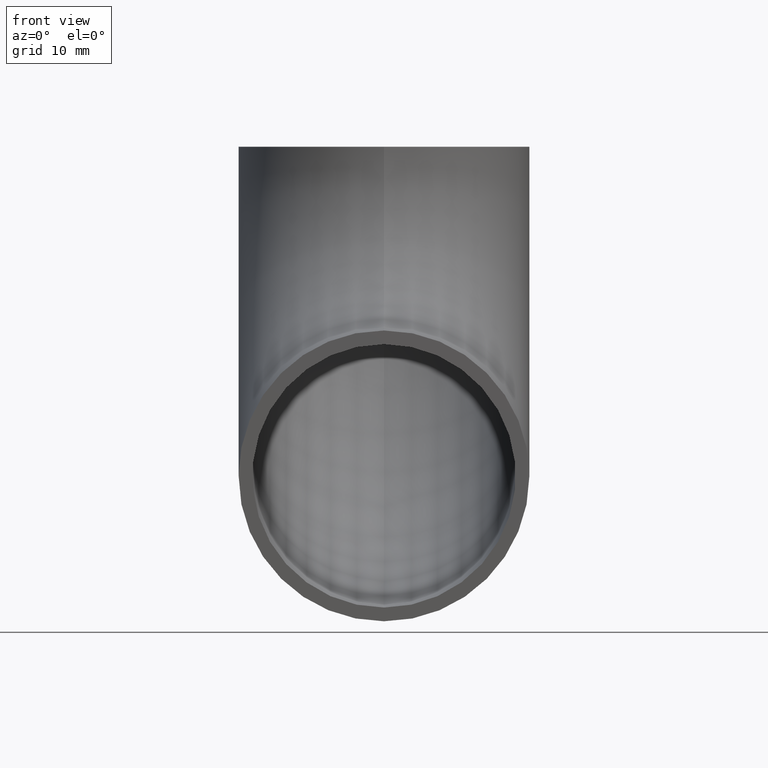
[diagram: clean part render]
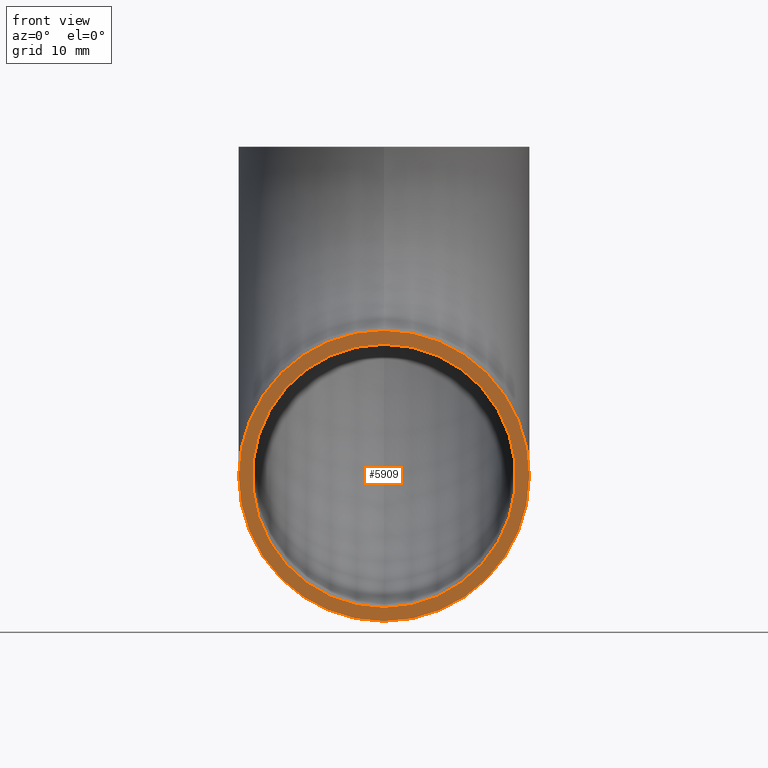
[diagram: same view with one face highlighted and labeled with its STEP entity id]
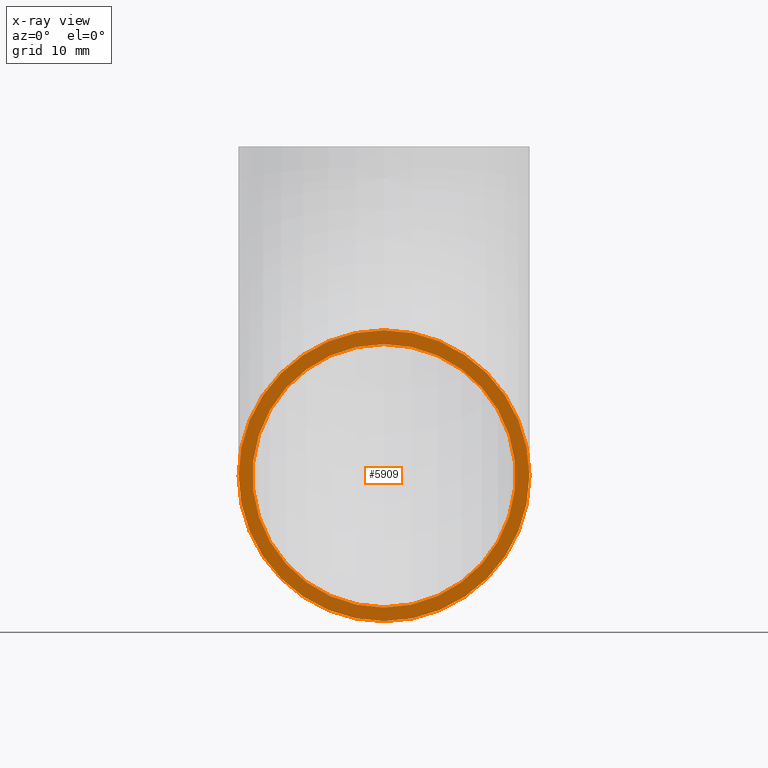
[diagram: x-ray of the same camera — body ghosted, the highlighted face saturated]
A machine part, front view. The second image highlights one B-rep face of the part: STEP entity #5909.
The next image is the same camera in x-ray: the body ghosted, the highlighted face saturated — about 0% of this face is hidden behind the body in this view.
In plain terms, the highlighted planar face has unit normal (0, 1, 0).
Its self-contained STEP definition (entity closure, byte-faithful):
#307 = CIRCLE ( 'NONE', #1771, 19.20000000000000300 ) ;
#451 = DIRECTION ( 'NONE',  ( 0.0000000000000000000, 1.000000000000000000, 0.0000000000000000000 ) ) ;
#492 = ORIENTED_EDGE ( 'NONE', *, *, #1770, .F. ) ;
#751 = DIRECTION ( 'NONE',  ( 0.0000000000000000000, 0.0000000000000000000, 1.000000000000000000 ) ) ;
#936 = EDGE_LOOP ( 'NONE', ( #7138, #492 ) ) ;
#941 = AXIS2_PLACEMENT_3D ( 'NONE', #5049, #10350, #11315 ) ;
#1745 = VERTEX_POINT ( 'NONE', #8875 ) ;
#1770 = EDGE_CURVE ( 'NONE', #1745, #5711, #1980, .T. ) ;
#1771 = AXIS2_PLACEMENT_3D ( 'NONE', #5243, #6058, #751 ) ;
#1980 = CIRCLE ( 'NONE', #941, 21.19999999999999900 ) ;
#1991 = AXIS2_PLACEMENT_3D ( 'NONE', #9545, #2482, #2562 ) ;
#2233 = FACE_BOUND ( 'NONE', #8086, .T. ) ;
#2482 = DIRECTION ( 'NONE',  ( 0.0000000000000000000, 1.000000000000000000, 0.0000000000000000000 ) ) ;
#2562 = DIRECTION ( 'NONE',  ( 0.0000000000000000000, 0.0000000000000000000, 1.000000000000000000 ) ) ;
#2648 = FACE_OUTER_BOUND ( 'NONE', #936, .T. ) ;
#2919 = EDGE_CURVE ( 'NONE', #5711, #1745, #3793, .T. ) ;
#3258 = DIRECTION ( 'NONE',  ( 0.0000000000000000000, 1.000000000000000000, 0.0000000000000000000 ) ) ;
#3704 = AXIS2_PLACEMENT_3D ( 'NONE', #10165, #451, #9315 ) ;
#3793 = CIRCLE ( 'NONE', #3704, 21.19999999999999900 ) ;
#3969 = CARTESIAN_POINT ( 'NONE',  ( 0.0000000000000000000, 0.0000000000000000000, -28.80000000000000100 ) ) ;
#4593 = ORIENTED_EDGE ( 'NONE', *, *, #6880, .T. ) ;
#4792 = CARTESIAN_POINT ( 'NONE',  ( 0.0000000000000000000, 0.0000000000000000000, -26.80000000000000100 ) ) ;
#5049 = CARTESIAN_POINT ( 'NONE',  ( 0.0000000000000000000, 0.0000000000000000000, -48.00000000000000000 ) ) ;
#5243 = CARTESIAN_POINT ( 'NONE',  ( 0.0000000000000000000, 0.0000000000000000000, -48.00000000000000000 ) ) ;
#5711 = VERTEX_POINT ( 'NONE', #4792 ) ;
#5909 = ADVANCED_FACE ( 'NONE', ( #2233, #2648 ), #10437, .F. ) ;
#6058 = DIRECTION ( 'NONE',  ( 0.0000000000000000000, 1.000000000000000000, 0.0000000000000000000 ) ) ;
#6808 = EDGE_CURVE ( 'NONE', #7088, #10566, #7659, .T. ) ;
#6880 = EDGE_CURVE ( 'NONE', #10566, #7088, #307, .T. ) ;
#7088 = VERTEX_POINT ( 'NONE', #3969 ) ;
#7138 = ORIENTED_EDGE ( 'NONE', *, *, #2919, .F. ) ;
#7656 = CARTESIAN_POINT ( 'NONE',  ( 0.0000000000000000000, 0.0000000000000000000, -48.00000000000000000 ) ) ;
#7659 = CIRCLE ( 'NONE', #1991, 19.20000000000000300 ) ;
#8086 = EDGE_LOOP ( 'NONE', ( #9977, #4593 ) ) ;
#8875 = CARTESIAN_POINT ( 'NONE',  ( 0.0000000000000000000, 0.0000000000000000000, -69.20000000000000300 ) ) ;
#9315 = DIRECTION ( 'NONE',  ( 0.0000000000000000000, 0.0000000000000000000, 1.000000000000000000 ) ) ;
#9439 = DIRECTION ( 'NONE',  ( 0.0000000000000000000, -0.0000000000000000000, 1.000000000000000000 ) ) ;
#9545 = CARTESIAN_POINT ( 'NONE',  ( 0.0000000000000000000, 0.0000000000000000000, -48.00000000000000000 ) ) ;
#9638 = CARTESIAN_POINT ( 'NONE',  ( 0.0000000000000000000, 0.0000000000000000000, -67.20000000000000300 ) ) ;
#9977 = ORIENTED_EDGE ( 'NONE', *, *, #6808, .T. ) ;
#10165 = CARTESIAN_POINT ( 'NONE',  ( 0.0000000000000000000, 0.0000000000000000000, -48.00000000000000000 ) ) ;
#10350 = DIRECTION ( 'NONE',  ( 0.0000000000000000000, 1.000000000000000000, 0.0000000000000000000 ) ) ;
#10437 = PLANE ( 'NONE',  #10745 ) ;
#10566 = VERTEX_POINT ( 'NONE', #9638 ) ;
#10745 = AXIS2_PLACEMENT_3D ( 'NONE', #7656, #3258, #9439 ) ;
#11315 = DIRECTION ( 'NONE',  ( 0.0000000000000000000, 0.0000000000000000000, 1.000000000000000000 ) ) ;